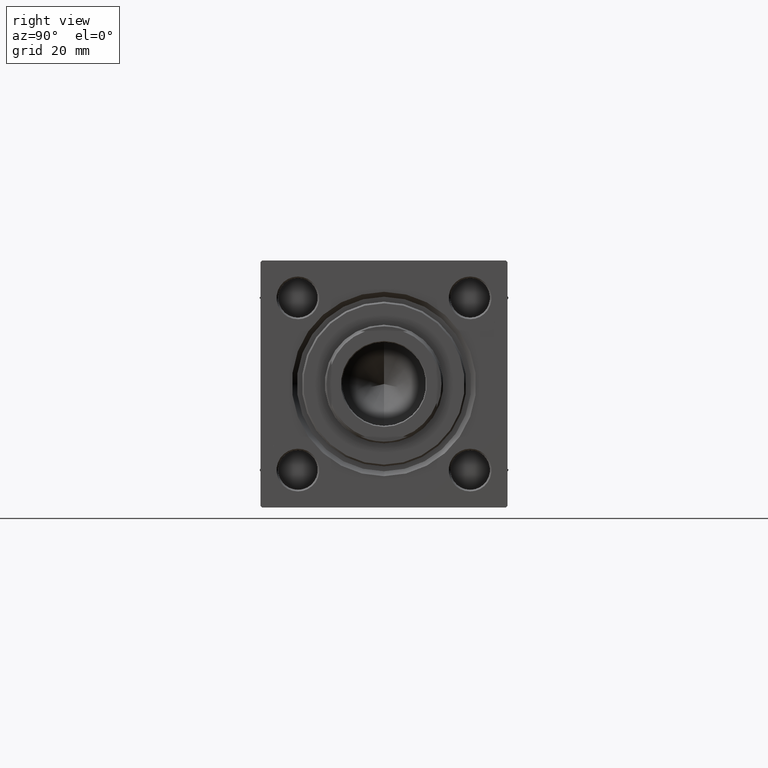
[diagram: clean part render]
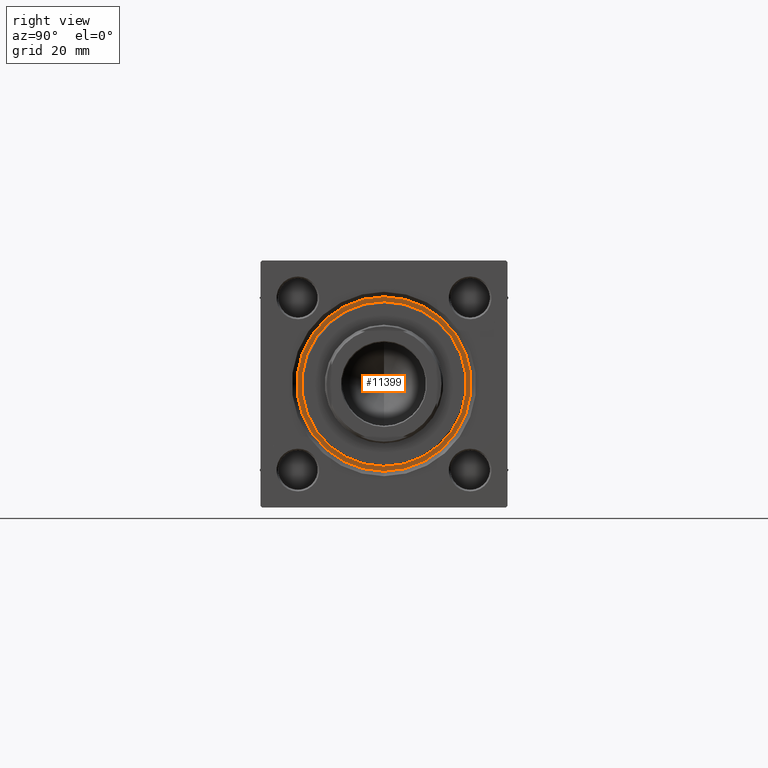
[diagram: same view with one face highlighted and labeled with its STEP entity id]
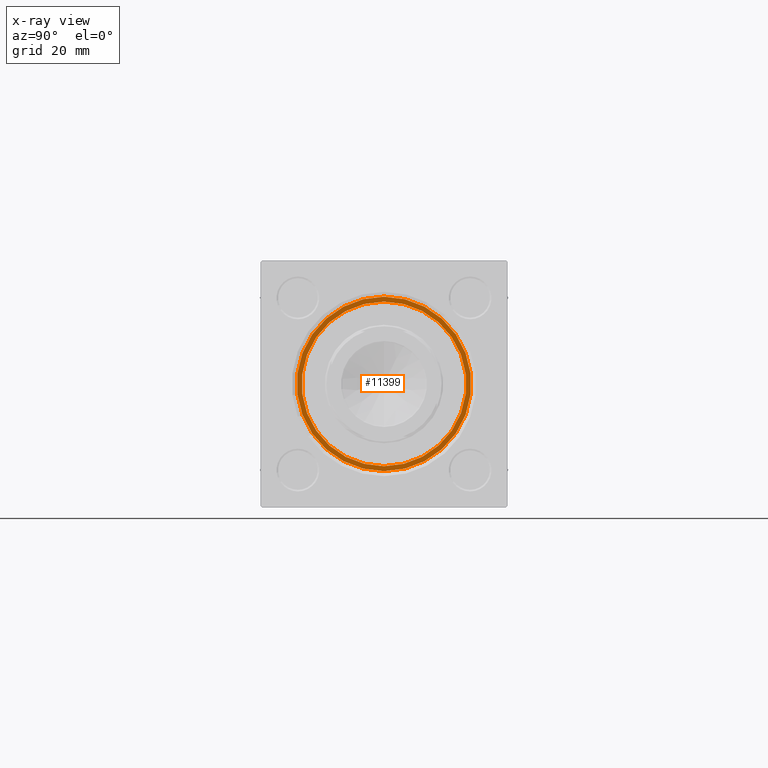
[diagram: x-ray of the same camera — body ghosted, the highlighted face saturated]
A machine part, right view. The second image highlights one B-rep face of the part: STEP entity #11399.
The next image is the same camera in x-ray: the body ghosted, the highlighted face saturated — about 0% of this face is hidden behind the body in this view.
In plain terms, the highlighted planar face has unit normal (1, 0, 0).
Its self-contained STEP definition (entity closure, byte-faithful):
#409 = DIRECTION ( 'NONE',  ( 0.000000000000000000, 0.000000000000000000, 1.000000000000000000 ) ) ;
#500 = VERTEX_POINT ( 'NONE', #25548 ) ;
#2821 = CARTESIAN_POINT ( 'NONE',  ( 0.000000000000000000, 0.000000000000000000, 28.69999999999999929 ) ) ;
#2951 = EDGE_CURVE ( 'NONE', #11755, #500, #13634, .T. ) ;
#3955 = CARTESIAN_POINT ( 'NONE',  ( 0.000000000000000000, 0.000000000000000000, 28.69999999999999929 ) ) ;
#4460 = DIRECTION ( 'NONE',  ( 0.000000000000000000, 0.000000000000000000, 1.000000000000000000 ) ) ;
#6433 = DIRECTION ( 'NONE',  ( 1.000000000000000000, 0.000000000000000000, 0.000000000000000000 ) ) ;
#6644 = FACE_BOUND ( 'NONE', #21336, .T. ) ;
#7380 = ORIENTED_EDGE ( 'NONE', *, *, #17854, .T. ) ;
#9482 = DIRECTION ( 'NONE',  ( 0.000000000000000000, 0.000000000000000000, 1.000000000000000000 ) ) ;
#10045 = CIRCLE ( 'NONE', #12461, 26.50000000000000355 ) ;
#10483 = EDGE_CURVE ( 'NONE', #43816, #24469, #40588, .T. ) ;
#11399 = ADVANCED_FACE ( 'NONE', ( #6644, #22097 ), #37571, .T. ) ;
#11755 = VERTEX_POINT ( 'NONE', #12291 ) ;
#12291 = CARTESIAN_POINT ( 'NONE',  ( -26.50000000000000355, 0.000000000000000000, 28.69999999999999929 ) ) ;
#12461 = AXIS2_PLACEMENT_3D ( 'NONE', #3955, #409, #34655 ) ;
#13483 = DIRECTION ( 'NONE',  ( 1.000000000000000000, 0.000000000000000000, 0.000000000000000000 ) ) ;
#13509 = EDGE_CURVE ( 'NONE', #24469, #43816, #28529, .T. ) ;
#13634 = CIRCLE ( 'NONE', #48481, 26.50000000000000355 ) ;
#17656 = ORIENTED_EDGE ( 'NONE', *, *, #10483, .F. ) ;
#17854 = EDGE_CURVE ( 'NONE', #500, #11755, #10045, .T. ) ;
#18296 = DIRECTION ( 'NONE',  ( 0.000000000000000000, 0.000000000000000000, 1.000000000000000000 ) ) ;
#19840 = CARTESIAN_POINT ( 'NONE',  ( 25.00000000000000000, 3.061616997868383043E-15, 28.69999999999999929 ) ) ;
#19927 = DIRECTION ( 'NONE',  ( 1.000000000000000000, 0.000000000000000000, 0.000000000000000000 ) ) ;
#20433 = AXIS2_PLACEMENT_3D ( 'NONE', #20876, #9482, #6433 ) ;
#20876 = CARTESIAN_POINT ( 'NONE',  ( 0.000000000000000000, 0.000000000000000000, 28.69999999999999929 ) ) ;
#21336 = EDGE_LOOP ( 'NONE', ( #30962, #17656 ) ) ;
#22097 = FACE_OUTER_BOUND ( 'NONE', #31765, .T. ) ;
#23734 = CARTESIAN_POINT ( 'NONE',  ( 0.000000000000000000, 0.000000000000000000, 28.69999999999999929 ) ) ;
#24469 = VERTEX_POINT ( 'NONE', #49923 ) ;
#25548 = CARTESIAN_POINT ( 'NONE',  ( 26.50000000000000355, 3.245314017740486554E-15, 28.69999999999999929 ) ) ;
#27652 = ORIENTED_EDGE ( 'NONE', *, *, #2951, .T. ) ;
#28529 = CIRCLE ( 'NONE', #20433, 25.00000000000000000 ) ;
#30898 = AXIS2_PLACEMENT_3D ( 'NONE', #36559, #32510, #13483 ) ;
#30962 = ORIENTED_EDGE ( 'NONE', *, *, #13509, .F. ) ;
#31765 = EDGE_LOOP ( 'NONE', ( #27652, #7380 ) ) ;
#32510 = DIRECTION ( 'NONE',  ( 0.000000000000000000, 0.000000000000000000, 1.000000000000000000 ) ) ;
#33782 = DIRECTION ( 'NONE',  ( 1.000000000000000000, 0.000000000000000000, -0.000000000000000000 ) ) ;
#34655 = DIRECTION ( 'NONE',  ( 1.000000000000000000, 0.000000000000000000, 0.000000000000000000 ) ) ;
#34960 = AXIS2_PLACEMENT_3D ( 'NONE', #2821, #18296, #33782 ) ;
#36559 = CARTESIAN_POINT ( 'NONE',  ( 0.000000000000000000, 0.000000000000000000, 28.69999999999999929 ) ) ;
#37571 = PLANE ( 'NONE',  #34960 ) ;
#40588 = CIRCLE ( 'NONE', #30898, 25.00000000000000000 ) ;
#43816 = VERTEX_POINT ( 'NONE', #19840 ) ;
#48481 = AXIS2_PLACEMENT_3D ( 'NONE', #23734, #4460, #19927 ) ;
#49923 = CARTESIAN_POINT ( 'NONE',  ( -25.00000000000000000, 0.000000000000000000, 28.69999999999999929 ) ) ;